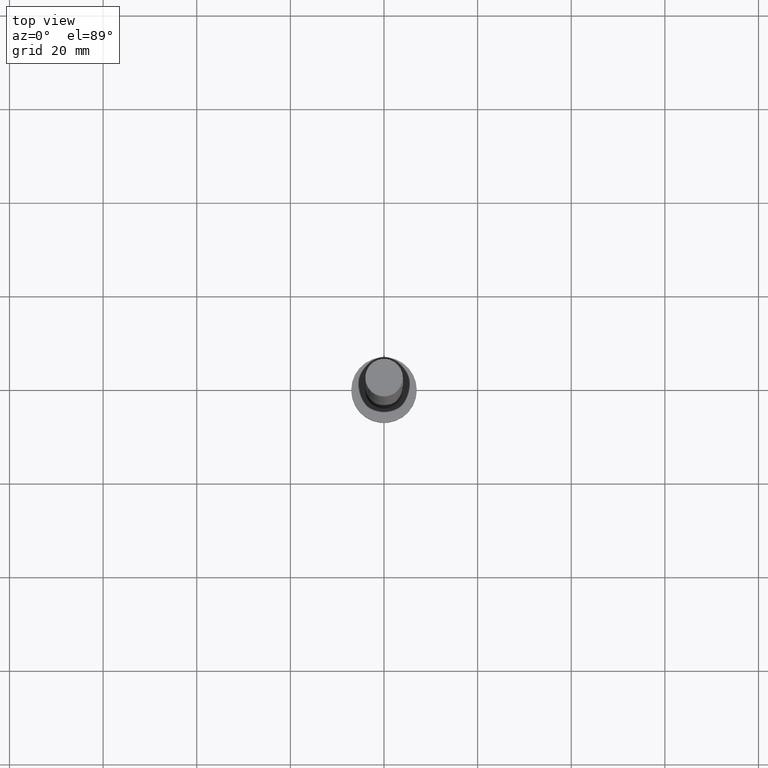
[diagram: clean part render]
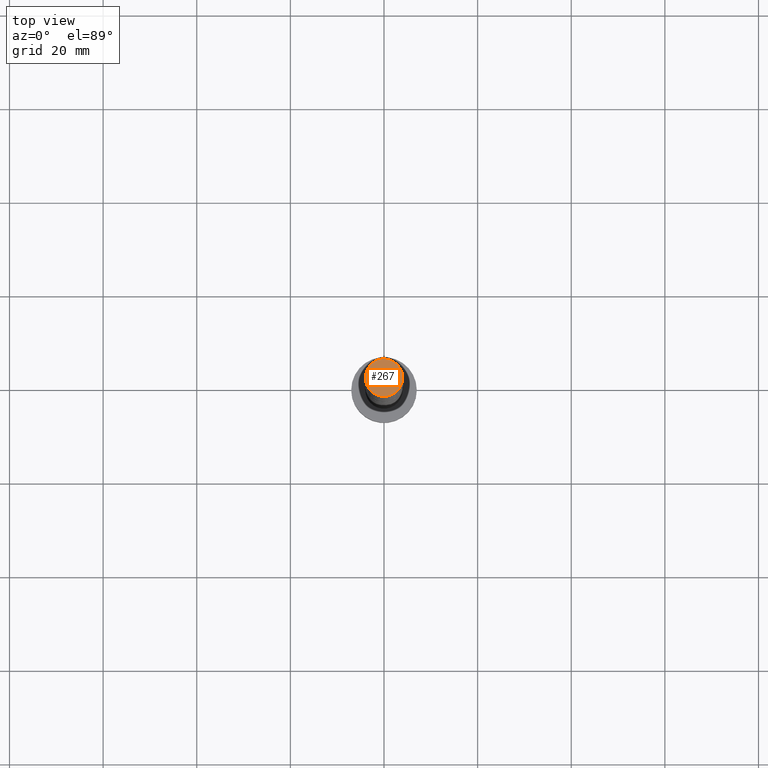
[diagram: same view with one face highlighted and labeled with its STEP entity id]
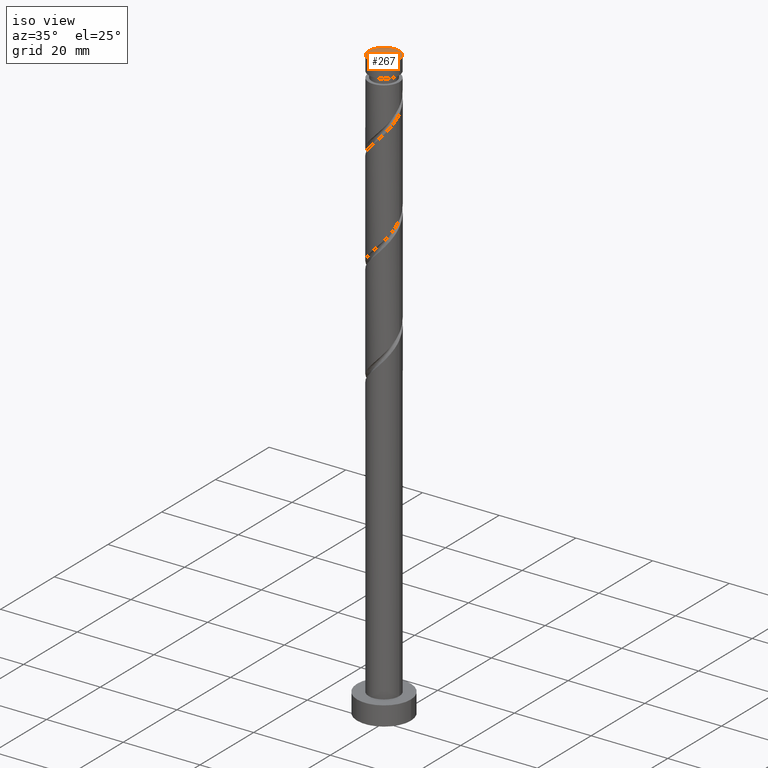
[diagram: same view with one face highlighted and labeled with its STEP entity id]
A machine part, top view. The second image highlights one B-rep face of the part: STEP entity #267.
A second angle (iso view) of the same face is appended — the face is thin or edge-on in the first view.
In plain terms, the highlighted planar face has unit normal (0, 0, 1).
Its self-contained STEP definition (entity closure, byte-faithful):
#40 = DIRECTION ( 'NONE',  ( 1.000000000000000000, 0.000000000000000000, 0.000000000000000000 ) ) ;
#69 = CARTESIAN_POINT ( 'NONE',  ( 0.000000000000000000, 0.000000000000000000, 155.0000000000000000 ) ) ;
#75 = CARTESIAN_POINT ( 'NONE',  ( 4.000000000000000000, 4.898587196589412829E-16, 155.0000000000000000 ) ) ;
#106 = AXIS2_PLACEMENT_3D ( 'NONE', #412, #926, #1431 ) ;
#197 = AXIS2_PLACEMENT_3D ( 'NONE', #1188, #1552, #40 ) ;
#198 = DIRECTION ( 'NONE',  ( 0.000000000000000000, 0.000000000000000000, 1.000000000000000000 ) ) ;
#248 = EDGE_CURVE ( 'NONE', #1420, #1605, #541, .T. ) ;
#267 = ADVANCED_FACE ( 'NONE', ( #404 ), #1543, .T. ) ;
#352 = EDGE_LOOP ( 'NONE', ( #993, #779 ) ) ;
#404 = FACE_OUTER_BOUND ( 'NONE', #352, .T. ) ;
#412 = CARTESIAN_POINT ( 'NONE',  ( 0.000000000000000000, 0.000000000000000000, 155.0000000000000000 ) ) ;
#541 = CIRCLE ( 'NONE', #197, 4.000000000000000000 ) ;
#701 = CIRCLE ( 'NONE', #1051, 4.000000000000000000 ) ;
#779 = ORIENTED_EDGE ( 'NONE', *, *, #248, .T. ) ;
#926 = DIRECTION ( 'NONE',  ( 0.000000000000000000, 0.000000000000000000, 1.000000000000000000 ) ) ;
#993 = ORIENTED_EDGE ( 'NONE', *, *, #1580, .T. ) ;
#1051 = AXIS2_PLACEMENT_3D ( 'NONE', #69, #198, #1211 ) ;
#1188 = CARTESIAN_POINT ( 'NONE',  ( 0.000000000000000000, 0.000000000000000000, 155.0000000000000000 ) ) ;
#1211 = DIRECTION ( 'NONE',  ( 1.000000000000000000, 0.000000000000000000, 0.000000000000000000 ) ) ;
#1420 = VERTEX_POINT ( 'NONE', #75 ) ;
#1431 = DIRECTION ( 'NONE',  ( 1.000000000000000000, 0.000000000000000000, -0.000000000000000000 ) ) ;
#1543 = PLANE ( 'NONE',  #106 ) ;
#1552 = DIRECTION ( 'NONE',  ( 0.000000000000000000, 0.000000000000000000, 1.000000000000000000 ) ) ;
#1580 = EDGE_CURVE ( 'NONE', #1605, #1420, #701, .T. ) ;
#1595 = CARTESIAN_POINT ( 'NONE',  ( -4.000000000000000000, 0.000000000000000000, 155.0000000000000000 ) ) ;
#1605 = VERTEX_POINT ( 'NONE', #1595 ) ;